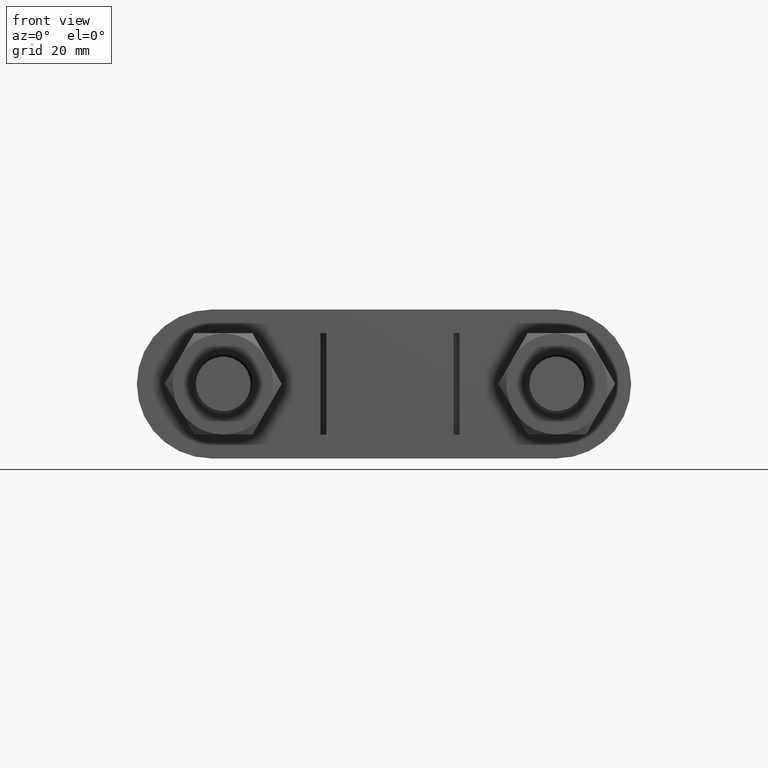
[diagram: clean part render]
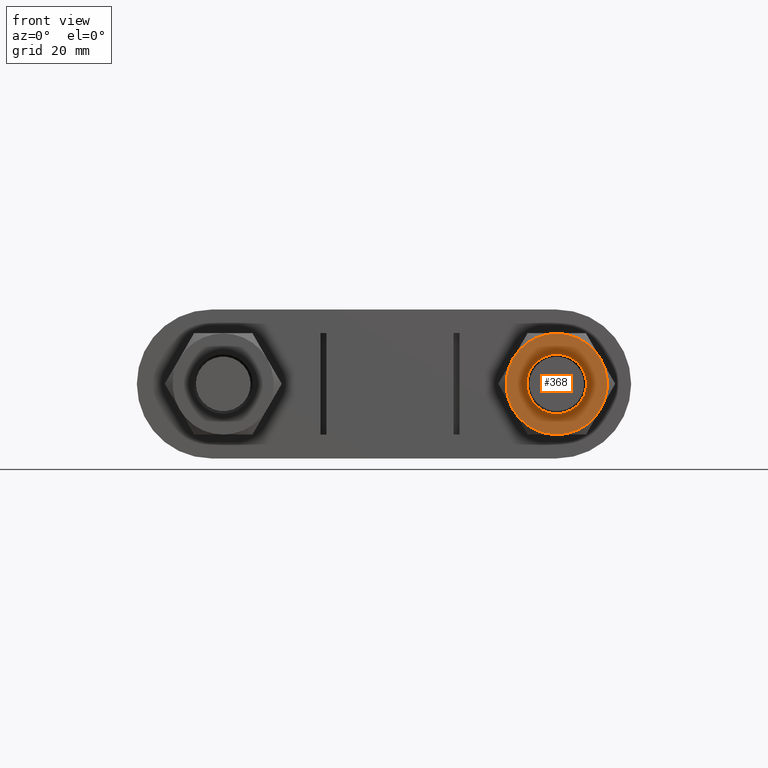
[diagram: same view with one face highlighted and labeled with its STEP entity id]
A machine part, front view. The second image highlights one B-rep face of the part: STEP entity #368.
In plain terms, the highlighted planar face has unit normal (0, 1, 0).
Its self-contained STEP definition (entity closure, byte-faithful):
#368 = ADVANCED_FACE( '', ( #611, #612 ), #613, .F. );
#611 = FACE_OUTER_BOUND( '', #1693, .T. );
#612 = FACE_BOUND( '', #1694, .T. );
#613 = PLANE( '', #1695 );
#1693 = EDGE_LOOP( '', ( #2458, #2459, #2460, #2461, #2462, #2463 ) );
#1694 = EDGE_LOOP( '', ( #2464 ) );
#1695 = AXIS2_PLACEMENT_3D( '', #2465, #2466, #2467 );
#2458 = ORIENTED_EDGE( '', *, *, #2769, .F. );
#2459 = ORIENTED_EDGE( '', *, *, #2737, .F. );
#2460 = ORIENTED_EDGE( '', *, *, #2749, .F. );
#2461 = ORIENTED_EDGE( '', *, *, #2766, .F. );
#2462 = ORIENTED_EDGE( '', *, *, #2735, .F. );
#2463 = ORIENTED_EDGE( '', *, *, #2775, .F. );
#2464 = ORIENTED_EDGE( '', *, *, #2776, .T. );
#2465 = CARTESIAN_POINT( '', ( 28.0000000000002, 17.0000000000002, -2.44921270764475E-016 ) );
#2466 = DIRECTION( '', ( 1.49966072182214E-032, 1.00000000000000, 6.12303176911190E-017 ) );
#2467 = DIRECTION( '', ( 1.00000000000000, -2.73691106313441E-048, -2.44921270764476E-016 ) );
#2735 = EDGE_CURVE( '', #3100, #3102, #3103, .T. );
#2737 = EDGE_CURVE( '', #3105, #3106, #3107, .T. );
#2749 = EDGE_CURVE( '', #3121, #3105, #3128, .T. );
#2766 = EDGE_CURVE( '', #3102, #3121, #3158, .T. );
#2769 = EDGE_CURVE( '', #3106, #3162, #3163, .T. );
#2775 = EDGE_CURVE( '', #3162, #3100, #3171, .T. );
#2776 = EDGE_CURVE( '', #3172, #3172, #3173, .T. );
#3100 = VERTEX_POINT( '', #3891 );
#3102 = VERTEX_POINT( '', #3898 );
#3103 = CIRCLE( '', #3899, 8.50000000000006 );
#3105 = VERTEX_POINT( '', #3906 );
#3106 = VERTEX_POINT( '', #3907 );
#3107 = CIRCLE( '', #3908, 8.50000000000006 );
#3121 = VERTEX_POINT( '', #3934 );
#3128 = CIRCLE( '', #3953, 8.50000000000006 );
#3158 = CIRCLE( '', #3995, 8.50000000000006 );
#3162 = VERTEX_POINT( '', #4004 );
#3163 = CIRCLE( '', #4005, 8.50000000000006 );
#3171 = CIRCLE( '', #4025, 8.50000000000006 );
#3172 = VERTEX_POINT( '', #4026 );
#3173 = CIRCLE( '', #4027, 5.00000000000004 );
#3891 = CARTESIAN_POINT( '', ( 28.0000000000042, 17.0000000000002, 8.50000000000006 ) );
#3898 = CARTESIAN_POINT( '', ( 35.3612159321700, 17.0000000000002, 4.24999999999661 ) );
#3899 = AXIS2_PLACEMENT_3D( '', #4325, #4326, #4327 );
#3906 = CARTESIAN_POINT( '', ( 27.9999999999982, 17.0000000000002, -8.50000000000121 ) );
#3907 = CARTESIAN_POINT( '', ( 20.6387840678305, 17.0000000000002, -4.24999999999661 ) );
#3908 = AXIS2_PLACEMENT_3D( '', #4328, #4329, #4330 );
#3934 = CARTESIAN_POINT( '', ( 35.3612159321659, 17.0000000000002, -4.25000000000349 ) );
#3953 = AXIS2_PLACEMENT_3D( '', #4344, #4345, #4346 );
#3995 = AXIS2_PLACEMENT_3D( '', #4378, #4379, #4380 );
#4004 = CARTESIAN_POINT( '', ( 20.6387840678345, 17.0000000000002, 4.25000000000349 ) );
#4005 = AXIS2_PLACEMENT_3D( '', #4384, #4385, #4386 );
#4025 = AXIS2_PLACEMENT_3D( '', #4392, #4393, #4394 );
#4026 = CARTESIAN_POINT( '', ( 28.0000000000002, 17.0000000000002, 5.00000000000004 ) );
#4027 = AXIS2_PLACEMENT_3D( '', #4395, #4396, #4397 );
#4325 = CARTESIAN_POINT( '', ( 28.0000000000002, 17.0000000000002, -2.44921270764476E-016 ) );
#4326 = DIRECTION( '', ( 1.49966072182214E-032, 1.00000000000000, 6.12303176911190E-017 ) );
#4327 = DIRECTION( '', ( 0.000000000000000, -6.12303176911190E-017, 1.00000000000000 ) );
#4328 = CARTESIAN_POINT( '', ( 28.0000000000002, 17.0000000000002, -2.44921270764476E-016 ) );
#4329 = DIRECTION( '', ( 1.49966072182214E-032, 1.00000000000000, 6.12303176911190E-017 ) );
#4330 = DIRECTION( '', ( 0.000000000000000, -6.12303176911190E-017, 1.00000000000000 ) );
#4344 = CARTESIAN_POINT( '', ( 28.0000000000002, 17.0000000000002, -2.44921270764476E-016 ) );
#4345 = DIRECTION( '', ( 1.49966072182214E-032, 1.00000000000000, 6.12303176911190E-017 ) );
#4346 = DIRECTION( '', ( 0.000000000000000, -6.12303176911190E-017, 1.00000000000000 ) );
#4378 = CARTESIAN_POINT( '', ( 28.0000000000002, 17.0000000000002, -2.44921270764476E-016 ) );
#4379 = DIRECTION( '', ( 1.49966072182214E-032, 1.00000000000000, 6.12303176911190E-017 ) );
#4380 = DIRECTION( '', ( 0.000000000000000, -6.12303176911190E-017, 1.00000000000000 ) );
#4384 = CARTESIAN_POINT( '', ( 28.0000000000002, 17.0000000000002, -2.44921270764476E-016 ) );
#4385 = DIRECTION( '', ( 1.49966072182214E-032, 1.00000000000000, 6.12303176911190E-017 ) );
#4386 = DIRECTION( '', ( 0.000000000000000, -6.12303176911190E-017, 1.00000000000000 ) );
#4392 = CARTESIAN_POINT( '', ( 28.0000000000002, 17.0000000000002, -2.44921270764476E-016 ) );
#4393 = DIRECTION( '', ( 1.49966072182214E-032, 1.00000000000000, 6.12303176911190E-017 ) );
#4394 = DIRECTION( '', ( 0.000000000000000, -6.12303176911190E-017, 1.00000000000000 ) );
#4395 = CARTESIAN_POINT( '', ( 28.0000000000002, 17.0000000000002, -2.44921270764475E-016 ) );
#4396 = DIRECTION( '', ( 1.49966072182214E-032, 1.00000000000000, 6.12303176911190E-017 ) );
#4397 = DIRECTION( '', ( 0.000000000000000, -6.12303176911190E-017, 1.00000000000000 ) );